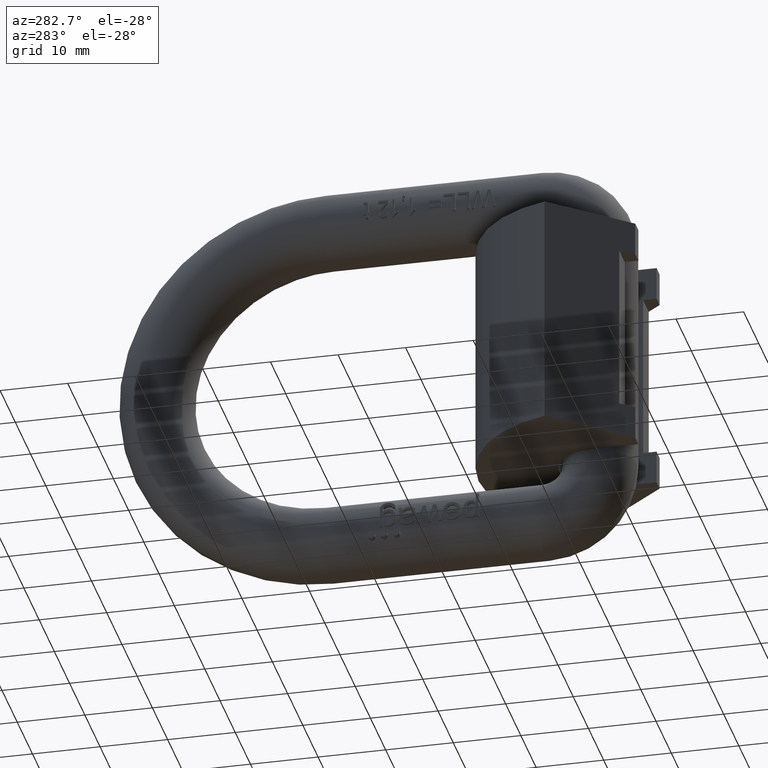
[diagram: clean part render]
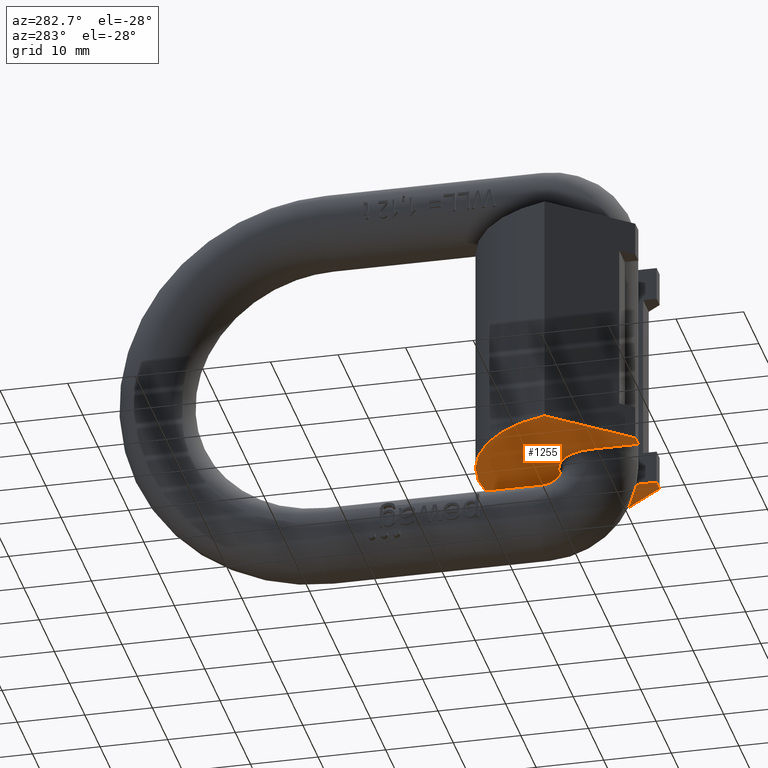
[diagram: same view with one face highlighted and labeled with its STEP entity id]
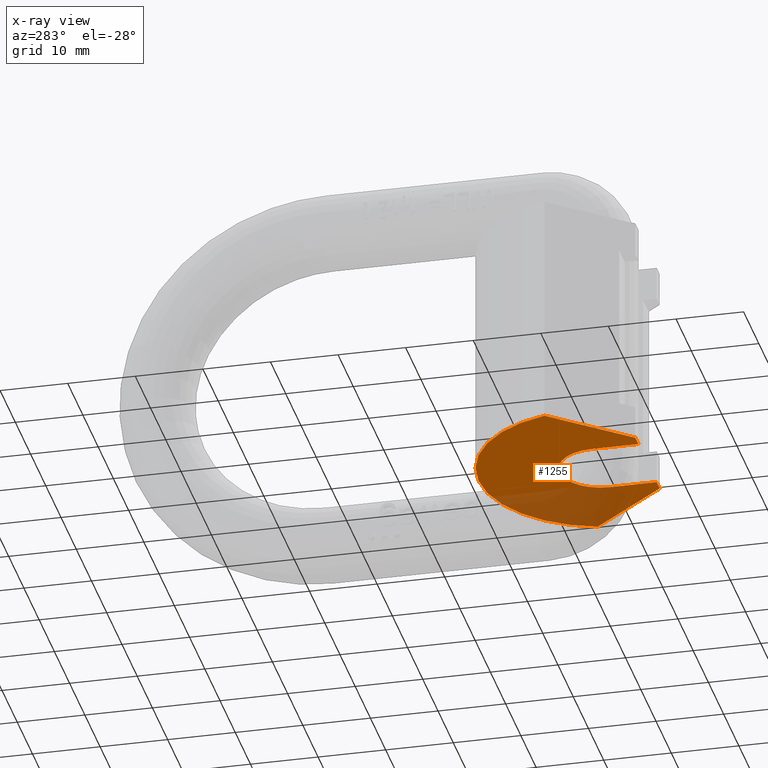
[diagram: x-ray of the same camera — body ghosted, the highlighted face saturated]
A machine part, auxiliary view. The second image highlights one B-rep face of the part: STEP entity #1255.
The next image is the same camera in x-ray: the body ghosted, the highlighted face saturated — about 33% of this face is hidden behind the body in this view.
In plain terms, the highlighted planar face has unit normal (0, 0, -1).
Its self-contained STEP definition (entity closure, byte-faithful):
#1028=PLANE('',#7769);
#1255=ADVANCED_FACE('',(#1692),#1028,.T.);
#1692=FACE_OUTER_BOUND('',#2090,.T.);
#2090=EDGE_LOOP('',(#2644,#2645,#2646,#2647,#2648,#2649,#2650,#2651));
#2563=CIRCLE('',#7764,18.);
#2565=CIRCLE('',#7768,6.);
#2644=ORIENTED_EDGE('',*,*,#5577,.F.);
#2645=ORIENTED_EDGE('',*,*,#5578,.T.);
#2646=ORIENTED_EDGE('',*,*,#5569,.F.);
#2647=ORIENTED_EDGE('',*,*,#5579,.T.);
#2648=ORIENTED_EDGE('',*,*,#5580,.F.);
#2649=ORIENTED_EDGE('',*,*,#5581,.F.);
#2650=ORIENTED_EDGE('',*,*,#5582,.F.);
#2651=ORIENTED_EDGE('',*,*,#5583,.F.);
#4829=VERTEX_POINT('',#9488);
#4831=VERTEX_POINT('',#9492);
#4838=VERTEX_POINT('',#9510);
#4839=VERTEX_POINT('',#9511);
#4840=VERTEX_POINT('',#9514);
#4841=VERTEX_POINT('',#9516);
#4842=VERTEX_POINT('',#9518);
#4843=VERTEX_POINT('',#9520);
#5569=EDGE_CURVE('',#4831,#4829,#2563,.T.);
#5577=EDGE_CURVE('',#4838,#4839,#6672,.T.);
#5578=EDGE_CURVE('',#4838,#4829,#6673,.T.);
#5579=EDGE_CURVE('',#4831,#4840,#6674,.T.);
#5580=EDGE_CURVE('',#4841,#4840,#6675,.T.);
#5581=EDGE_CURVE('',#4842,#4841,#6676,.T.);
#5582=EDGE_CURVE('',#4843,#4842,#2565,.T.);
#5583=EDGE_CURVE('',#4839,#4843,#6677,.T.);
#6672=LINE('',#9509,#7136);
#6673=LINE('',#9512,#7137);
#6674=LINE('',#9513,#7138);
#6675=LINE('',#9515,#7139);
#6676=LINE('',#9517,#7140);
#6677=LINE('',#9521,#7141);
#7136=VECTOR('',#8145,1.);
#7137=VECTOR('',#8146,1.);
#7138=VECTOR('',#8147,1.);
#7139=VECTOR('',#8148,1.);
#7140=VECTOR('',#8149,1.);
#7141=VECTOR('',#8152,1.);
#7764=AXIS2_PLACEMENT_3D('',#9493,#8131,#8132);
#7768=AXIS2_PLACEMENT_3D('',#9519,#8150,#8151);
#7769=AXIS2_PLACEMENT_3D('',#9522,#8153,#8154);
#8131=DIRECTION('',(0.,0.,1.));
#8132=DIRECTION('',(1.,0.,0.));
#8145=DIRECTION('',(1.,0.,0.));
#8146=DIRECTION('',(-0.64278760968654,0.766044443118978,0.));
#8147=DIRECTION('',(-0.64278760968654,-0.766044443118978,0.));
#8148=DIRECTION('',(1.,0.,0.));
#8149=DIRECTION('',(0.,-1.,0.));
#8150=DIRECTION('',(0.,0.,-1.));
#8151=DIRECTION('',(1.,1.44560289664734E-16,0.));
#8152=DIRECTION('',(0.,1.,0.));
#8153=DIRECTION('',(0.,0.,-1.));
#8154=DIRECTION('',(-1.,0.,0.));
#9488=CARTESIAN_POINT('',(-17.4795201256592,11.2972521658235,-17.5));
#9492=CARTESIAN_POINT('',(17.4795201256592,11.2972521658235,-17.5));
#9493=CARTESIAN_POINT('',(0.,7.,-17.5));
#9509=CARTESIAN_POINT('',(-18.,0.,-17.5));
#9510=CARTESIAN_POINT('',(-8.,-8.88178419700125E-16,-17.5));
#9511=CARTESIAN_POINT('',(-6.,0.,-17.5));
#9512=CARTESIAN_POINT('',(-8.14141984621045,0.168537609785422,-17.5));
#9513=CARTESIAN_POINT('',(8.14141984621045,0.168537609785422,-17.5));
#9514=CARTESIAN_POINT('',(8.,-8.88178419700125E-16,-17.5));
#9515=CARTESIAN_POINT('',(6.,0.,-17.5));
#9516=CARTESIAN_POINT('',(6.,0.,-17.5));
#9517=CARTESIAN_POINT('',(6.,7.,-17.5));
#9518=CARTESIAN_POINT('',(6.,7.,-17.5));
#9519=CARTESIAN_POINT('',(0.,7.,-17.5));
#9520=CARTESIAN_POINT('',(-6.,7.,-17.5));
#9521=CARTESIAN_POINT('',(-6.,0.,-17.5));
#9522=CARTESIAN_POINT('',(0.,7.,-17.5));